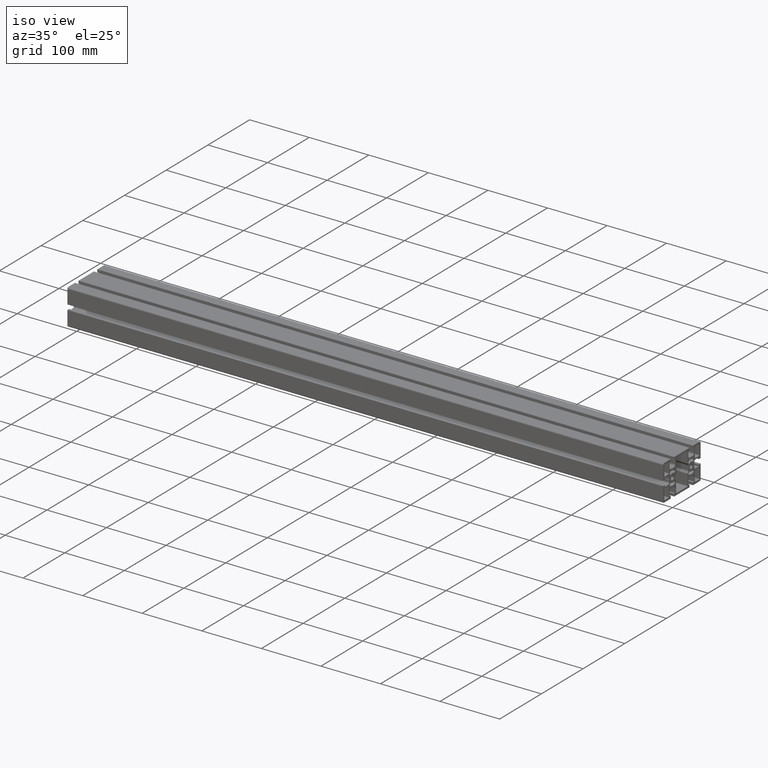
[diagram: clean part render]
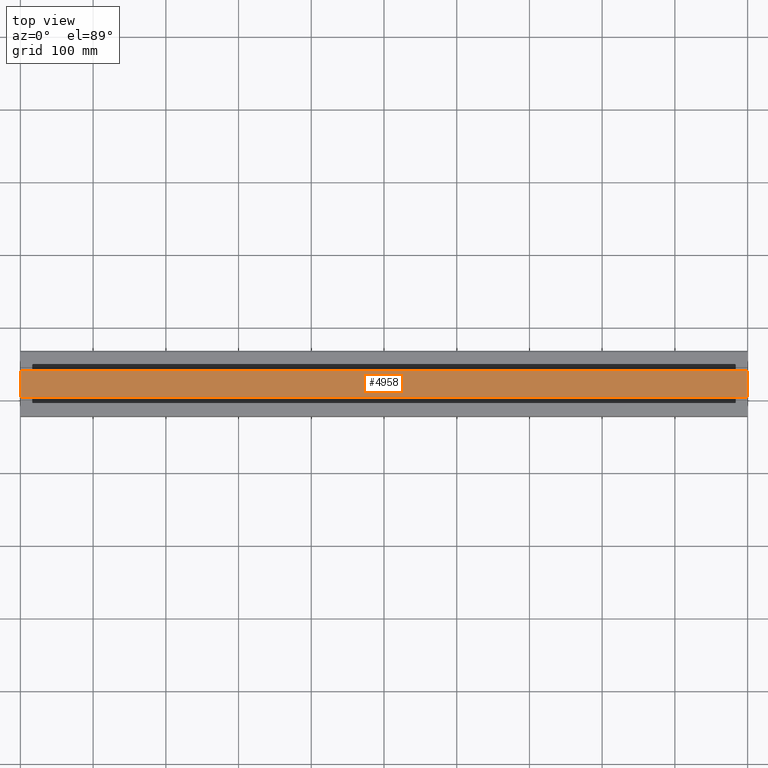
[diagram: tour spotlight — one face highlighted and labeled with its STEP entity id]
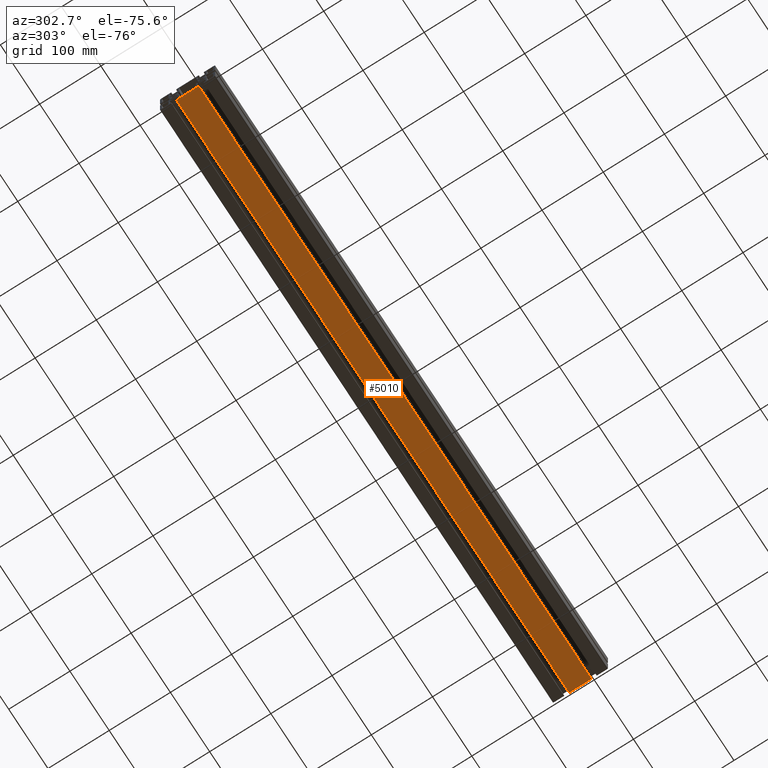
[diagram: tour spotlight — one face highlighted and labeled with its STEP entity id]
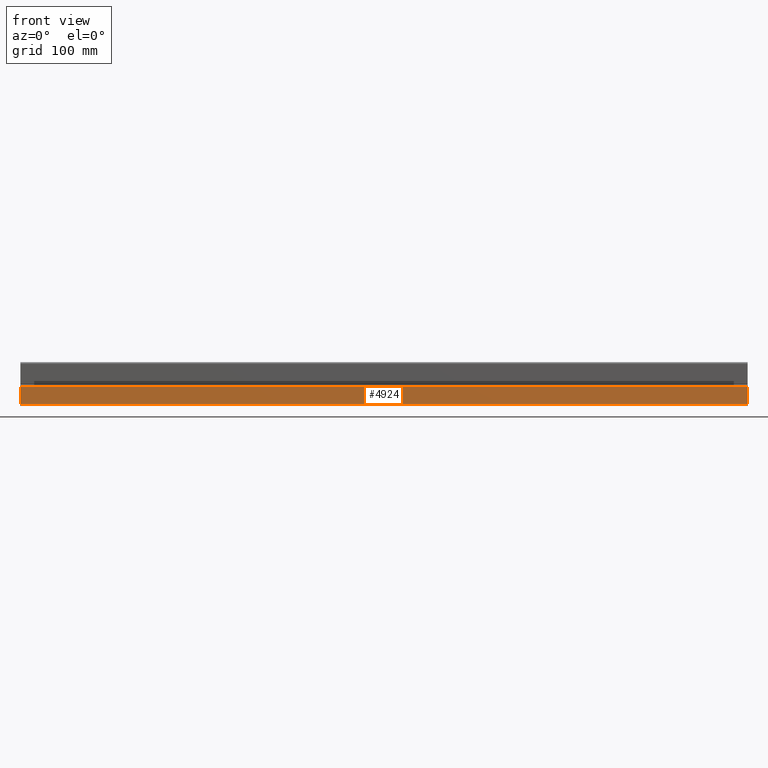
[diagram: tour spotlight — one face highlighted and labeled with its STEP entity id]
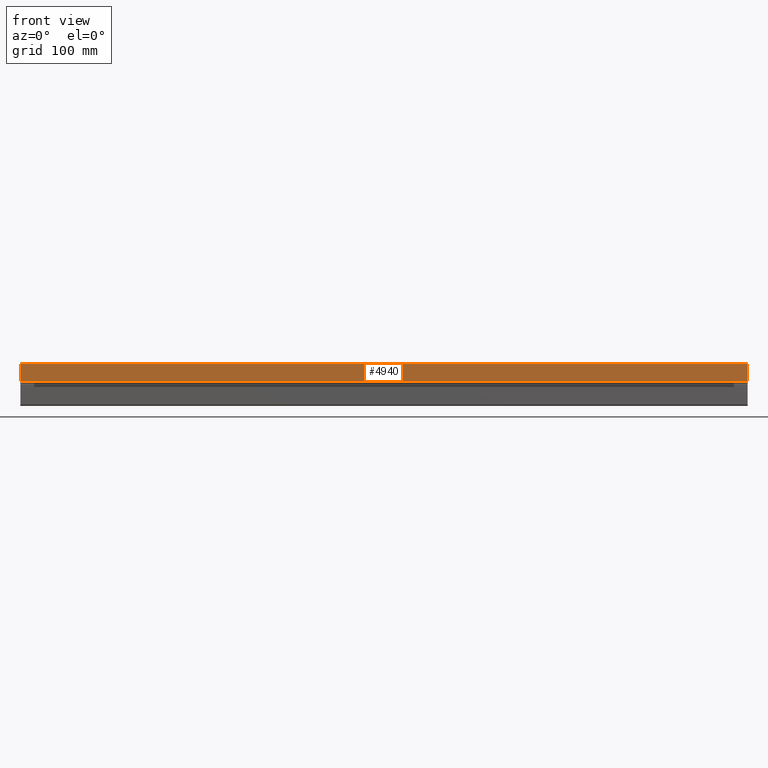
[diagram: tour spotlight — one face highlighted and labeled with its STEP entity id]
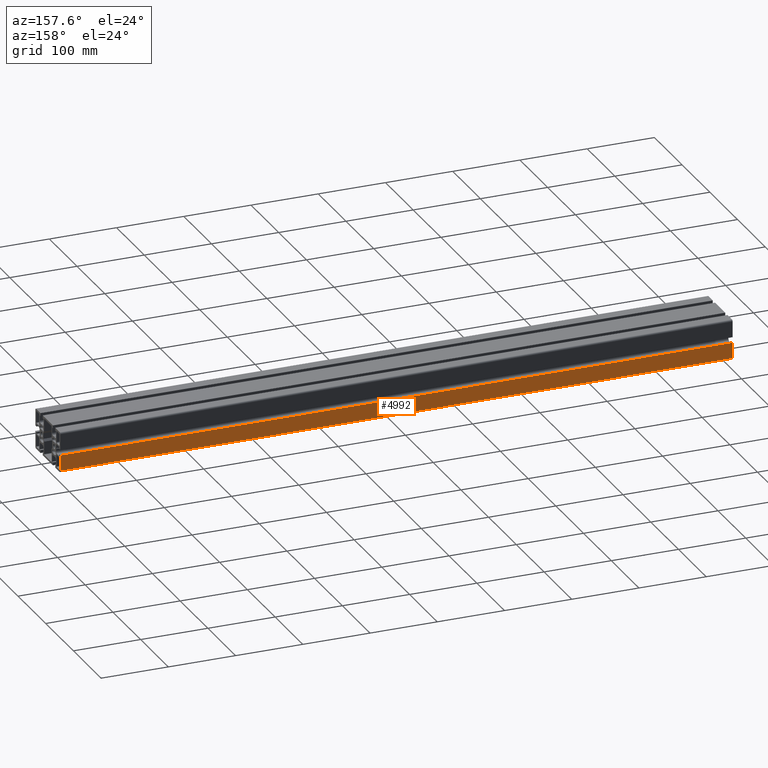
[diagram: tour spotlight — one face highlighted and labeled with its STEP entity id]
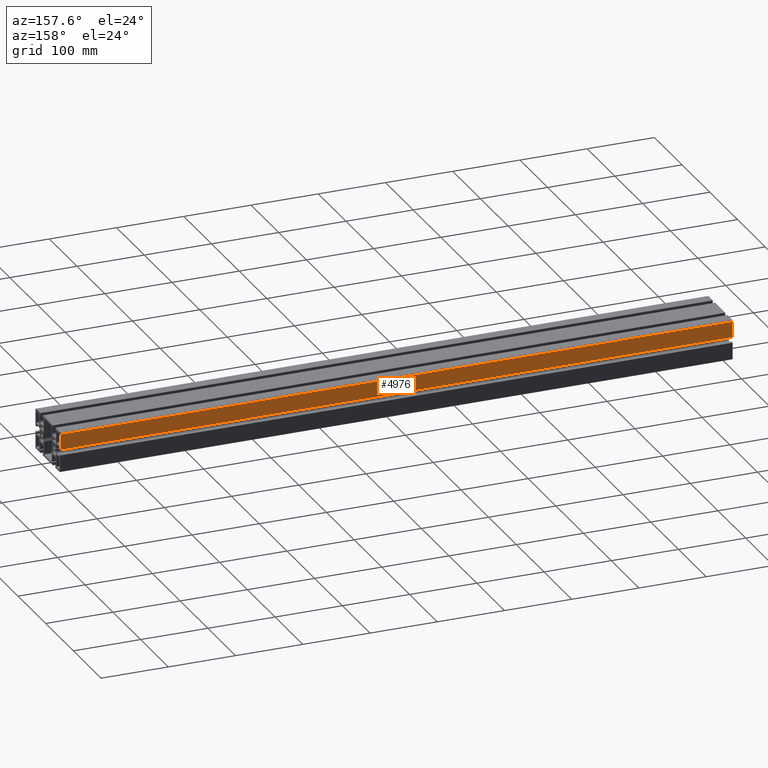
[diagram: tour spotlight — one face highlighted and labeled with its STEP entity id]
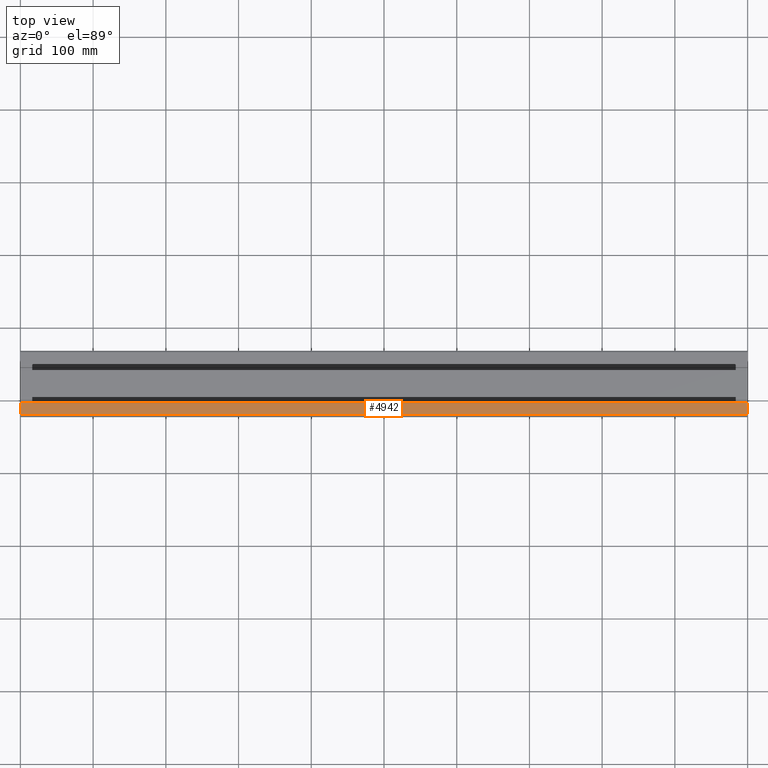
[diagram: tour spotlight — one face highlighted and labeled with its STEP entity id]
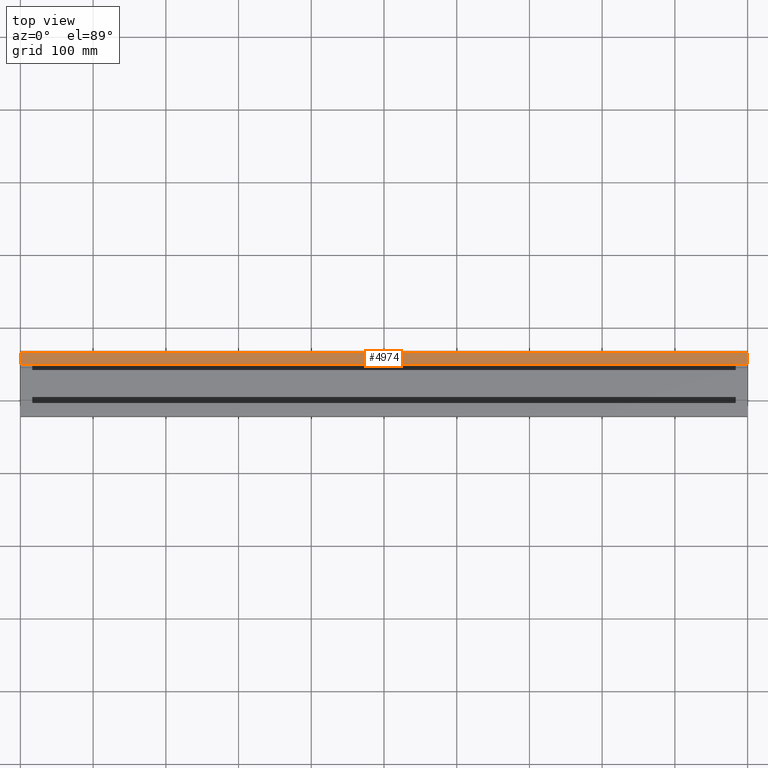
[diagram: tour spotlight — one face highlighted and labeled with its STEP entity id]
A machine part: a face-by-face anatomy tour. The part has 244 B-rep faces; the first image is the clean iso view, then the 8 largest visible faces are spotlighted one at a time (largest first), each with its STEP entity span.

Face 1 — top view, entity #4958. In plain terms, the highlighted planar face has unit normal (0, 0, 1).
Definition (entity closure, byte-faithful):
#430=FACE_OUTER_BOUND('',#674,.T.);
#674=EDGE_LOOP('',(#3897,#3898,#3899,#3900));
#1216=LINE('',#7905,#1806);
#1217=LINE('',#7908,#1807);
#1218=LINE('',#7910,#1808);
#1219=LINE('',#7911,#1809);
#1806=VECTOR('',#6465,10.);
#1807=VECTOR('',#6468,10.);
#1808=VECTOR('',#6469,10.);
#1809=VECTOR('',#6470,10.);
#2309=VERTEX_POINT('',#7901);
#2310=VERTEX_POINT('',#7903);
#2311=VERTEX_POINT('',#7907);
#2312=VERTEX_POINT('',#7909);
#2982=EDGE_CURVE('',#2309,#2310,#1216,.T.);
#2983=EDGE_CURVE('',#2309,#2311,#1217,.T.);
#2984=EDGE_CURVE('',#2312,#2310,#1218,.T.);
#2985=EDGE_CURVE('',#2311,#2312,#1219,.T.);
#3897=ORIENTED_EDGE('',*,*,#2983,.F.);
#3898=ORIENTED_EDGE('',*,*,#2982,.T.);
#3899=ORIENTED_EDGE('',*,*,#2984,.F.);
#3900=ORIENTED_EDGE('',*,*,#2985,.F.);
#4731=PLANE('',#5327);
#4958=ADVANCED_FACE('',(#430),#4731,.T.);
#5327=AXIS2_PLACEMENT_3D('',#7906,#6466,#6467);
#6465=DIRECTION('',(1.,0.,0.));
#6466=DIRECTION('center_axis',(0.,0.,1.));
#6467=DIRECTION('ref_axis',(0.,-1.,0.));
#6468=DIRECTION('',(0.,1.,0.));
#6469=DIRECTION('',(0.,-1.,0.));
#6470=DIRECTION('',(1.,0.,0.));
#7901=CARTESIAN_POINT('',(0.,4.14999999999999,30.0000000000021));
#7903=CARTESIAN_POINT('',(1000.,4.14999999999999,30.0000000000021));
#7905=CARTESIAN_POINT('',(0.,4.14999999999999,30.0000000000021));
#7906=CARTESIAN_POINT('Origin',(0.,40.8499999999989,30.0000000000021));
#7907=CARTESIAN_POINT('',(0.,40.8499999999989,30.0000000000021));
#7908=CARTESIAN_POINT('',(0.,4.14999999999999,30.0000000000021));
#7909=CARTESIAN_POINT('',(1000.,40.8499999999989,30.0000000000021));
#7910=CARTESIAN_POINT('',(1000.,4.14999999999999,30.0000000000021));
#7911=CARTESIAN_POINT('',(0.,40.8499999999989,30.0000000000021));

Face 2 — auxiliary view, entity #5010. In plain terms, the highlighted planar face has unit normal (0, 0, -1).
Definition (entity closure, byte-faithful):
#482=FACE_OUTER_BOUND('',#726,.T.);
#726=EDGE_LOOP('',(#4105,#4106,#4107,#4108));
#1098=LINE('',#7602,#1688);
#1338=LINE('',#8217,#1928);
#1339=LINE('',#8219,#1929);
#1340=LINE('',#8220,#1930);
#1688=VECTOR('',#6179,10.);
#1928=VECTOR('',#6759,10.);
#1929=VECTOR('',#6762,10.);
#1930=VECTOR('',#6763,10.);
#2207=VERTEX_POINT('',#7598);
#2209=VERTEX_POINT('',#7601);
#2413=VERTEX_POINT('',#8213);
#2414=VERTEX_POINT('',#8215);
#2830=EDGE_CURVE('',#2207,#2209,#1098,.T.);
#3138=EDGE_CURVE('',#2413,#2414,#1338,.T.);
#3139=EDGE_CURVE('',#2413,#2207,#1339,.T.);
#3140=EDGE_CURVE('',#2209,#2414,#1340,.T.);
#4105=ORIENTED_EDGE('',*,*,#3139,.F.);
#4106=ORIENTED_EDGE('',*,*,#3138,.T.);
#4107=ORIENTED_EDGE('',*,*,#3140,.F.);
#4108=ORIENTED_EDGE('',*,*,#2830,.F.);
#4766=PLANE('',#5413);
#5010=ADVANCED_FACE('',(#482),#4766,.T.);
#5413=AXIS2_PLACEMENT_3D('',#8218,#6760,#6761);
#6179=DIRECTION('',(1.,0.,0.));
#6759=DIRECTION('',(1.,0.,0.));
#6760=DIRECTION('center_axis',(0.,0.,-1.));
#6761=DIRECTION('ref_axis',(0.,1.,0.));
#6762=DIRECTION('',(0.,-1.,0.));
#6763=DIRECTION('',(0.,1.,0.));
#7598=CARTESIAN_POINT('',(0.,4.14999999999825,-29.9999999999993));
#7601=CARTESIAN_POINT('',(1000.,4.14999999999825,-29.9999999999993));
#7602=CARTESIAN_POINT('',(0.,4.14999999999825,-29.9999999999993));
#8213=CARTESIAN_POINT('',(0.,40.8499999999972,-29.9999999999993));
#8215=CARTESIAN_POINT('',(1000.,40.8499999999972,-29.9999999999993));
#8217=CARTESIAN_POINT('',(0.,40.8499999999972,-29.9999999999993));
#8218=CARTESIAN_POINT('Origin',(0.,4.14999999999825,-29.9999999999993));
#8219=CARTESIAN_POINT('',(0.,40.8499999999972,-29.9999999999993));
#8220=CARTESIAN_POINT('',(1000.,40.8499999999972,-29.9999999999993));

Face 3 — front view, entity #4924. In plain terms, the highlighted planar face has unit normal (0, -1, 0).
Definition (entity closure, byte-faithful):
#396=FACE_OUTER_BOUND('',#640,.T.);
#640=EDGE_LOOP('',(#3761,#3762,#3763,#3764));
#1136=LINE('',#7701,#1726);
#1137=LINE('',#7704,#1727);
#1138=LINE('',#7706,#1728);
#1139=LINE('',#7707,#1729);
#1726=VECTOR('',#6273,10.);
#1727=VECTOR('',#6276,10.);
#1728=VECTOR('',#6277,10.);
#1729=VECTOR('',#6278,10.);
#2241=VERTEX_POINT('',#7697);
#2242=VERTEX_POINT('',#7699);
#2243=VERTEX_POINT('',#7703);
#2244=VERTEX_POINT('',#7705);
#2880=EDGE_CURVE('',#2241,#2242,#1136,.T.);
#2881=EDGE_CURVE('',#2241,#2243,#1137,.T.);
#2882=EDGE_CURVE('',#2244,#2242,#1138,.T.);
#2883=EDGE_CURVE('',#2243,#2244,#1139,.T.);
#3761=ORIENTED_EDGE('',*,*,#2881,.F.);
#3762=ORIENTED_EDGE('',*,*,#2880,.T.);
#3763=ORIENTED_EDGE('',*,*,#2882,.F.);
#3764=ORIENTED_EDGE('',*,*,#2883,.F.);
#4708=PLANE('',#5271);
#4924=ADVANCED_FACE('',(#396),#4708,.T.);
#5271=AXIS2_PLACEMENT_3D('',#7702,#6274,#6275);
#6273=DIRECTION('',(1.,0.,0.));
#6274=DIRECTION('center_axis',(0.,-1.,0.));
#6275=DIRECTION('ref_axis',(0.,0.,-1.));
#6276=DIRECTION('',(0.,0.,1.));
#6277=DIRECTION('',(0.,0.,-1.));
#6278=DIRECTION('',(1.,0.,0.));
#7697=CARTESIAN_POINT('',(0.,-22.5000000000028,-27.4999999999999));
#7699=CARTESIAN_POINT('',(1000.,-22.5000000000028,-27.4999999999999));
#7701=CARTESIAN_POINT('',(0.,-22.5000000000028,-27.4999999999999));
#7702=CARTESIAN_POINT('Origin',(0.,-22.5000000000028,-4.14667450000055));
#7703=CARTESIAN_POINT('',(0.,-22.5000000000028,-4.14667450000055));
#7704=CARTESIAN_POINT('',(0.,-22.5000000000028,-27.4999999999999));
#7705=CARTESIAN_POINT('',(1000.,-22.5000000000028,-4.14667450000055));
#7706=CARTESIAN_POINT('',(1000.,-22.5000000000028,-27.4999999999999));
#7707=CARTESIAN_POINT('',(0.,-22.5000000000028,-4.14667450000055));

Face 4 — front view, entity #4940. In plain terms, the highlighted planar face has unit normal (0, -1, 0).
Definition (entity closure, byte-faithful):
#412=FACE_OUTER_BOUND('',#656,.T.);
#656=EDGE_LOOP('',(#3825,#3826,#3827,#3828));
#1174=LINE('',#7797,#1764);
#1175=LINE('',#7800,#1765);
#1176=LINE('',#7802,#1766);
#1177=LINE('',#7803,#1767);
#1764=VECTOR('',#6363,10.);
#1765=VECTOR('',#6366,10.);
#1766=VECTOR('',#6367,10.);
#1767=VECTOR('',#6368,10.);
#2273=VERTEX_POINT('',#7793);
#2274=VERTEX_POINT('',#7795);
#2275=VERTEX_POINT('',#7799);
#2276=VERTEX_POINT('',#7801);
#2928=EDGE_CURVE('',#2273,#2274,#1174,.T.);
#2929=EDGE_CURVE('',#2273,#2275,#1175,.T.);
#2930=EDGE_CURVE('',#2276,#2274,#1176,.T.);
#2931=EDGE_CURVE('',#2275,#2276,#1177,.T.);
#3825=ORIENTED_EDGE('',*,*,#2929,.F.);
#3826=ORIENTED_EDGE('',*,*,#2928,.T.);
#3827=ORIENTED_EDGE('',*,*,#2930,.F.);
#3828=ORIENTED_EDGE('',*,*,#2931,.F.);
#4719=PLANE('',#5297);
#4940=ADVANCED_FACE('',(#412),#4719,.T.);
#5297=AXIS2_PLACEMENT_3D('',#7798,#6364,#6365);
#6363=DIRECTION('',(1.,0.,0.));
#6364=DIRECTION('center_axis',(0.,-1.,7.60860755308054E-16));
#6365=DIRECTION('ref_axis',(0.,-7.60860755308054E-16,-1.));
#6366=DIRECTION('',(0.,7.60860755308054E-16,1.));
#6367=DIRECTION('',(0.,-7.60860755308054E-16,-1.));
#6368=DIRECTION('',(1.,0.,0.));
#7793=CARTESIAN_POINT('',(0.,-22.5000000000012,4.1533255000003));
#7795=CARTESIAN_POINT('',(1000.,-22.5000000000012,4.1533255000003));
#7797=CARTESIAN_POINT('',(0.,-22.5000000000012,4.1533255000003));
#7798=CARTESIAN_POINT('Origin',(0.,-22.5000000000012,27.5000000000019));
#7799=CARTESIAN_POINT('',(0.,-22.5000000000012,27.5000000000019));
#7800=CARTESIAN_POINT('',(0.,-22.5000000000012,4.1533255000003));
#7801=CARTESIAN_POINT('',(1000.,-22.5000000000012,27.5000000000019));
#7802=CARTESIAN_POINT('',(1000.,-22.5000000000012,4.1533255000003));
#7803=CARTESIAN_POINT('',(0.,-22.5000000000012,27.5000000000019));

Face 5 — auxiliary view, entity #4992. In plain terms, the highlighted planar face has unit normal (0, 1, 0).
Definition (entity closure, byte-faithful):
#464=FACE_OUTER_BOUND('',#708,.T.);
#708=EDGE_LOOP('',(#4033,#4034,#4035,#4036));
#1296=LINE('',#8109,#1886);
#1297=LINE('',#8112,#1887);
#1298=LINE('',#8114,#1888);
#1299=LINE('',#8115,#1889);
#1886=VECTOR('',#6657,10.);
#1887=VECTOR('',#6660,10.);
#1888=VECTOR('',#6661,10.);
#1889=VECTOR('',#6662,10.);
#2377=VERTEX_POINT('',#8105);
#2378=VERTEX_POINT('',#8107);
#2379=VERTEX_POINT('',#8111);
#2380=VERTEX_POINT('',#8113);
#3084=EDGE_CURVE('',#2377,#2378,#1296,.T.);
#3085=EDGE_CURVE('',#2377,#2379,#1297,.T.);
#3086=EDGE_CURVE('',#2380,#2378,#1298,.T.);
#3087=EDGE_CURVE('',#2379,#2380,#1299,.T.);
#4033=ORIENTED_EDGE('',*,*,#3085,.F.);
#4034=ORIENTED_EDGE('',*,*,#3084,.T.);
#4035=ORIENTED_EDGE('',*,*,#3086,.F.);
#4036=ORIENTED_EDGE('',*,*,#3087,.F.);
#4754=PLANE('',#5383);
#4992=ADVANCED_FACE('',(#464),#4754,.T.);
#5383=AXIS2_PLACEMENT_3D('',#8110,#6658,#6659);
#6657=DIRECTION('',(1.,0.,0.));
#6658=DIRECTION('center_axis',(0.,1.,0.));
#6659=DIRECTION('ref_axis',(0.,0.,1.));
#6660=DIRECTION('',(0.,0.,-1.));
#6661=DIRECTION('',(0.,0.,1.));
#6662=DIRECTION('',(1.,0.,0.));
#8105=CARTESIAN_POINT('',(0.,67.5000000000014,-4.14667449999974));
#8107=CARTESIAN_POINT('',(1000.,67.5000000000014,-4.14667449999974));
#8109=CARTESIAN_POINT('',(0.,67.5000000000014,-4.14667449999974));
#8110=CARTESIAN_POINT('Origin',(0.,67.5000000000014,-27.5000000000007));
#8111=CARTESIAN_POINT('',(0.,67.5000000000014,-27.5000000000007));
#8112=CARTESIAN_POINT('',(0.,67.5000000000014,-4.14667449999974));
#8113=CARTESIAN_POINT('',(1000.,67.5000000000014,-27.5000000000007));
#8114=CARTESIAN_POINT('',(1000.,67.5000000000014,-4.14667449999974));
#8115=CARTESIAN_POINT('',(0.,67.5000000000014,-27.5000000000007));

Face 6 — auxiliary view, entity #4976. In plain terms, the highlighted planar face has unit normal (0, 1, 0).
Definition (entity closure, byte-faithful):
#448=FACE_OUTER_BOUND('',#692,.T.);
#692=EDGE_LOOP('',(#3969,#3970,#3971,#3972));
#1258=LINE('',#8013,#1848);
#1259=LINE('',#8016,#1849);
#1260=LINE('',#8018,#1850);
#1261=LINE('',#8019,#1851);
#1848=VECTOR('',#6567,10.);
#1849=VECTOR('',#6570,10.);
#1850=VECTOR('',#6571,10.);
#1851=VECTOR('',#6572,10.);
#2345=VERTEX_POINT('',#8009);
#2346=VERTEX_POINT('',#8011);
#2347=VERTEX_POINT('',#8015);
#2348=VERTEX_POINT('',#8017);
#3036=EDGE_CURVE('',#2345,#2346,#1258,.T.);
#3037=EDGE_CURVE('',#2345,#2347,#1259,.T.);
#3038=EDGE_CURVE('',#2348,#2346,#1260,.T.);
#3039=EDGE_CURVE('',#2347,#2348,#1261,.T.);
#3969=ORIENTED_EDGE('',*,*,#3037,.F.);
#3970=ORIENTED_EDGE('',*,*,#3036,.T.);
#3971=ORIENTED_EDGE('',*,*,#3038,.F.);
#3972=ORIENTED_EDGE('',*,*,#3039,.F.);
#4743=PLANE('',#5357);
#4976=ADVANCED_FACE('',(#448),#4743,.T.);
#5357=AXIS2_PLACEMENT_3D('',#8014,#6568,#6569);
#6567=DIRECTION('',(1.,0.,0.));
#6568=DIRECTION('center_axis',(0.,1.,0.));
#6569=DIRECTION('ref_axis',(0.,0.,1.));
#6570=DIRECTION('',(0.,0.,-1.));
#6571=DIRECTION('',(0.,0.,1.));
#6572=DIRECTION('',(1.,0.,0.));
#8009=CARTESIAN_POINT('',(0.,67.4999999999994,27.5000000000029));
#8011=CARTESIAN_POINT('',(1000.,67.4999999999994,27.5000000000029));
#8013=CARTESIAN_POINT('',(0.,67.4999999999994,27.5000000000029));
#8014=CARTESIAN_POINT('Origin',(0.,67.4999999999994,4.15332550000233));
#8015=CARTESIAN_POINT('',(0.,67.4999999999994,4.15332550000233));
#8016=CARTESIAN_POINT('',(0.,67.4999999999994,27.5000000000029));
#8017=CARTESIAN_POINT('',(1000.,67.4999999999994,4.15332550000233));
#8018=CARTESIAN_POINT('',(1000.,67.4999999999994,27.5000000000029));
#8019=CARTESIAN_POINT('',(0.,67.4999999999994,4.15332550000233));

Face 7 — top view, entity #4942. In plain terms, the highlighted planar face has unit normal (0, 0, 1).
Definition (entity closure, byte-faithful):
#414=FACE_OUTER_BOUND('',#658,.T.);
#658=EDGE_LOOP('',(#3833,#3834,#3835,#3836));
#1178=LINE('',#7809,#1768);
#1179=LINE('',#7812,#1769);
#1180=LINE('',#7814,#1770);
#1181=LINE('',#7815,#1771);
#1768=VECTOR('',#6375,10.);
#1769=VECTOR('',#6378,10.);
#1770=VECTOR('',#6379,10.);
#1771=VECTOR('',#6380,10.);
#2277=VERTEX_POINT('',#7805);
#2278=VERTEX_POINT('',#7807);
#2279=VERTEX_POINT('',#7811);
#2280=VERTEX_POINT('',#7813);
#2934=EDGE_CURVE('',#2277,#2278,#1178,.T.);
#2935=EDGE_CURVE('',#2277,#2279,#1179,.T.);
#2936=EDGE_CURVE('',#2280,#2278,#1180,.T.);
#2937=EDGE_CURVE('',#2279,#2280,#1181,.T.);
#3833=ORIENTED_EDGE('',*,*,#2935,.F.);
#3834=ORIENTED_EDGE('',*,*,#2934,.T.);
#3835=ORIENTED_EDGE('',*,*,#2936,.F.);
#3836=ORIENTED_EDGE('',*,*,#2937,.F.);
#4720=PLANE('',#5301);
#4942=ADVANCED_FACE('',(#414),#4720,.T.);
#5301=AXIS2_PLACEMENT_3D('',#7810,#6376,#6377);
#6375=DIRECTION('',(1.,0.,0.));
#6376=DIRECTION('center_axis',(0.,0.,1.));
#6377=DIRECTION('ref_axis',(0.,-1.,0.));
#6378=DIRECTION('',(0.,1.,0.));
#6379=DIRECTION('',(0.,-1.,0.));
#6380=DIRECTION('',(1.,0.,0.));
#7805=CARTESIAN_POINT('',(0.,-20.0000000000006,30.0000000000008));
#7807=CARTESIAN_POINT('',(1000.,-20.0000000000006,30.0000000000008));
#7809=CARTESIAN_POINT('',(0.,-20.0000000000006,30.0000000000008));
#7810=CARTESIAN_POINT('Origin',(0.,-4.14999999999983,30.0000000000008));
#7811=CARTESIAN_POINT('',(0.,-4.14999999999983,30.0000000000008));
#7812=CARTESIAN_POINT('',(0.,-20.0000000000006,30.0000000000008));
#7813=CARTESIAN_POINT('',(1000.,-4.14999999999983,30.0000000000008));
#7814=CARTESIAN_POINT('',(1000.,-20.0000000000006,30.0000000000008));
#7815=CARTESIAN_POINT('',(0.,-4.14999999999983,30.0000000000008));

Face 8 — top view, entity #4974. In plain terms, the highlighted planar face has unit normal (0, 0, 1).
Definition (entity closure, byte-faithful):
#446=FACE_OUTER_BOUND('',#690,.T.);
#690=EDGE_LOOP('',(#3961,#3962,#3963,#3964));
#1254=LINE('',#8001,#1844);
#1255=LINE('',#8004,#1845);
#1256=LINE('',#8006,#1846);
#1257=LINE('',#8007,#1847);
#1844=VECTOR('',#6555,10.);
#1845=VECTOR('',#6558,10.);
#1846=VECTOR('',#6559,10.);
#1847=VECTOR('',#6560,10.);
#2341=VERTEX_POINT('',#7997);
#2342=VERTEX_POINT('',#7999);
#2343=VERTEX_POINT('',#8003);
#2344=VERTEX_POINT('',#8005);
#3030=EDGE_CURVE('',#2341,#2342,#1254,.T.);
#3031=EDGE_CURVE('',#2341,#2343,#1255,.T.);
#3032=EDGE_CURVE('',#2344,#2342,#1256,.T.);
#3033=EDGE_CURVE('',#2343,#2344,#1257,.T.);
#3961=ORIENTED_EDGE('',*,*,#3031,.F.);
#3962=ORIENTED_EDGE('',*,*,#3030,.T.);
#3963=ORIENTED_EDGE('',*,*,#3032,.F.);
#3964=ORIENTED_EDGE('',*,*,#3033,.F.);
#4742=PLANE('',#5353);
#4974=ADVANCED_FACE('',(#446),#4742,.T.);
#5353=AXIS2_PLACEMENT_3D('',#8002,#6556,#6557);
#6555=DIRECTION('',(1.,0.,0.));
#6556=DIRECTION('center_axis',(0.,0.,1.));
#6557=DIRECTION('ref_axis',(0.,-1.,0.));
#6558=DIRECTION('',(0.,1.,0.));
#6559=DIRECTION('',(0.,-1.,0.));
#6560=DIRECTION('',(1.,0.,0.));
#7997=CARTESIAN_POINT('',(0.,49.149999999999,30.0000000000026));
#7999=CARTESIAN_POINT('',(1000.,49.149999999999,30.0000000000026));
#8001=CARTESIAN_POINT('',(0.,49.149999999999,30.0000000000026));
#8002=CARTESIAN_POINT('Origin',(0.,64.9999999999993,30.0000000000026));
#8003=CARTESIAN_POINT('',(0.,64.9999999999993,30.0000000000026));
#8004=CARTESIAN_POINT('',(0.,49.149999999999,30.0000000000026));
#8005=CARTESIAN_POINT('',(1000.,64.9999999999993,30.0000000000026));
#8006=CARTESIAN_POINT('',(1000.,49.149999999999,30.0000000000026));
#8007=CARTESIAN_POINT('',(0.,64.9999999999993,30.0000000000026));